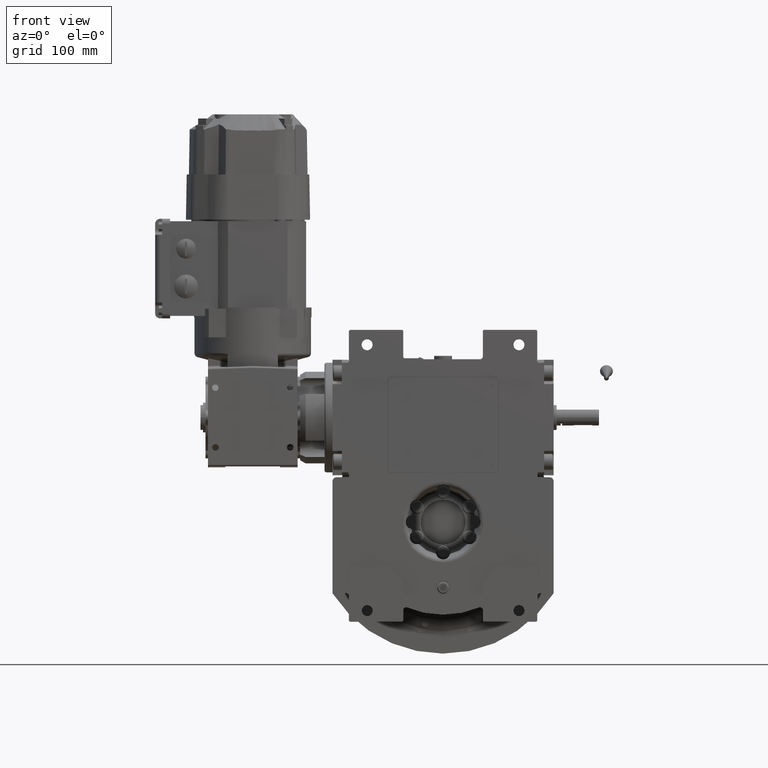
[diagram: clean part render]
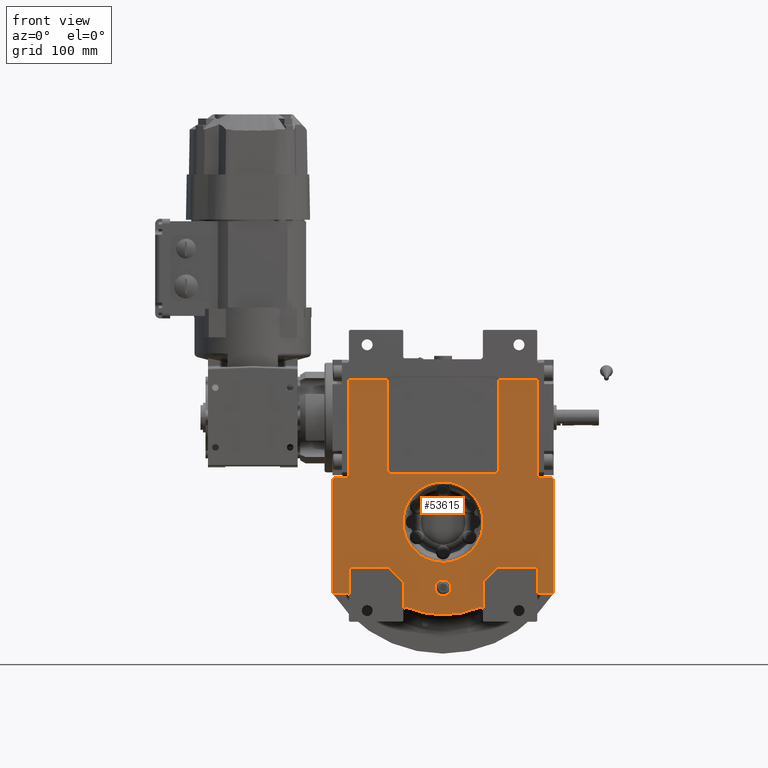
[diagram: same view with one face highlighted and labeled with its STEP entity id]
A machine part, front view. The second image highlights one B-rep face of the part: STEP entity #53615.
In plain terms, the highlighted planar face has unit normal (0, 1, 0).
Its self-contained STEP definition (entity closure, byte-faithful):
#188 = CARTESIAN_POINT ( 'NONE',  ( 94.50000000000000000, -53.50000000000000000, -74.43528539874399996 ) ) ;
#190 = ORIENTED_EDGE ( 'NONE', *, *, #62920, .F. ) ;
#290 = CARTESIAN_POINT ( 'NONE',  ( 40.00000000000000000, -53.50000000000000000, -60.00000000000000000 ) ) ;
#435 = ORIENTED_EDGE ( 'NONE', *, *, #64984, .T. ) ;
#565 = AXIS2_PLACEMENT_3D ( 'NONE', #31292, #53047, #22724 ) ;
#845 = CARTESIAN_POINT ( 'NONE',  ( 40.00000000000000000, -53.50000000000000000, -60.00000000000000000 ) ) ;
#1156 = EDGE_CURVE ( 'NONE', #30560, #99830, #25427, .T. ) ;
#1990 = CARTESIAN_POINT ( 'NONE',  ( 94.50000000000000000, -53.50000000000000000, -45.00000000000000000 ) ) ;
#2035 = LINE ( 'NONE', #7585, #57930 ) ;
#2894 = CARTESIAN_POINT ( 'NONE',  ( 55.87298334620739837, -53.50000000000000000, 143.0000000000000000 ) ) ;
#3516 = VERTEX_POINT ( 'NONE', #23594 ) ;
#3698 = CARTESIAN_POINT ( 'NONE',  ( 80.61913312125007280, -53.49999999999999289, -40.30955543265933727 ) ) ;
#3939 = LINE ( 'NONE', #34753, #90412 ) ;
#4000 = DIRECTION ( 'NONE',  ( 0.000000000000000000, 1.000000000000000000, 0.000000000000000000 ) ) ;
#4211 = EDGE_CURVE ( 'NONE', #86020, #65869, #81507, .T. ) ;
#4237 = ORIENTED_EDGE ( 'NONE', *, *, #42951, .T. ) ;
#5141 = DIRECTION ( 'NONE',  ( 1.000000000000000000, 0.000000000000000000, 0.000000000000000000 ) ) ;
#5598 = VECTOR ( 'NONE', #36988, 1000.000000000000000 ) ;
#5831 = CARTESIAN_POINT ( 'NONE',  ( -97.50000000000000000, -53.50000000000000000, -74.43528539874409944 ) ) ;
#5908 = EDGE_CURVE ( 'NONE', #31588, #78031, #58016, .T. ) ;
#5952 = CIRCLE ( 'NONE', #52681, 3.999999999999996447 ) ;
#6453 = CARTESIAN_POINT ( 'NONE',  ( -51.99999999999900524, -53.50000000000000000, 142.0000000000000000 ) ) ;
#6679 = ORIENTED_EDGE ( 'NONE', *, *, #57818, .T. ) ;
#6720 =( BOUNDED_CURVE ( )  B_SPLINE_CURVE ( 3, ( #57737, #88032, #3698, #56752 ),
 .UNSPECIFIED., .F., .F. ) 
 B_SPLINE_CURVE_WITH_KNOTS ( ( 4, 4 ),
 ( 4.574175343352308687, 7.715766673011676957 ),
 .UNSPECIFIED. ) 
 CURVE ( )  GEOMETRIC_REPRESENTATION_ITEM ( )  RATIONAL_B_SPLINE_CURVE ( ( 1.000000000000000000, 0.3333337746434750226, 0.3333337746434750226, 1.000000000000000000 ) ) 
 REPRESENTATION_ITEM ( '' )  );
#6794 = CARTESIAN_POINT ( 'NONE',  ( -40.00000000000000000, -53.50000000000000000, -88.58329413608420566 ) ) ;
#6921 = EDGE_CURVE ( 'NONE', #46789, #51474, #58270, .T. ) ;
#6986 = ORIENTED_EDGE ( 'NONE', *, *, #40569, .T. ) ;
#7317 = DIRECTION ( 'NONE',  ( 0.000000000000000000, 1.000000000000000000, 0.000000000000000000 ) ) ;
#7400 = DIRECTION ( 'NONE',  ( 0.000000000000000000, 0.000000000000000000, -1.000000000000000000 ) ) ;
#7585 = CARTESIAN_POINT ( 'NONE',  ( 111.0000000000000000, -53.50000000000000000, -71.43528539874399996 ) ) ;
#8211 = LINE ( 'NONE', #59785, #90338 ) ;
#8370 = DIRECTION ( 'NONE',  ( 0.000000000000000000, 0.000000000000000000, -1.000000000000000000 ) ) ;
#9608 = DIRECTION ( 'NONE',  ( 6.319570704518680589E-16, 0.000000000000000000, 1.000000000000000000 ) ) ;
#9794 = CARTESIAN_POINT ( 'NONE',  ( -94.50000000000000000, -53.50000000000000000, 143.0000000000000000 ) ) ;
#9984 = ORIENTED_EDGE ( 'NONE', *, *, #31333, .T. ) ;
#10295 = EDGE_CURVE ( 'NONE', #38622, #30560, #43104, .T. ) ;
#10619 = VERTEX_POINT ( 'NONE', #17804 ) ;
#10976 = CARTESIAN_POINT ( 'NONE',  ( 94.50000000000000000, -53.50000000000000000, 143.0000000000000000 ) ) ;
#11875 = EDGE_CURVE ( 'NONE', #85499, #99442, #29811, .T. ) ;
#12745 = ORIENTED_EDGE ( 'NONE', *, *, #49988, .F. ) ;
#12762 = LINE ( 'NONE', #43552, #5598 ) ;
#12978 = EDGE_CURVE ( 'NONE', #49361, #69653, #80165, .T. ) ;
#13552 = DIRECTION ( 'NONE',  ( 1.000000000000000000, 0.000000000000000000, 0.000000000000000000 ) ) ;
#13621 = LINE ( 'NONE', #97481, #36276 ) ;
#13722 = VERTEX_POINT ( 'NONE', #71372 ) ;
#14378 = ORIENTED_EDGE ( 'NONE', *, *, #25570, .F. ) ;
#15151 = VERTEX_POINT ( 'NONE', #95118 ) ;
#15789 = CARTESIAN_POINT ( 'NONE',  ( 51.99999999999940314, -53.50000000000000000, 142.0000000000000000 ) ) ;
#16103 = ORIENTED_EDGE ( 'NONE', *, *, #42607, .T. ) ;
#16123 = VECTOR ( 'NONE', #39093, 1000.000000000000000 ) ;
#16202 = DIRECTION ( 'NONE',  ( 1.000000000000000000, 0.000000000000000000, 5.204170427930416550E-15 ) ) ;
#16783 = EDGE_CURVE ( 'NONE', #78031, #97169, #41407, .T. ) ;
#16807 = ORIENTED_EDGE ( 'NONE', *, *, #59659, .T. ) ;
#17484 = AXIS2_PLACEMENT_3D ( 'NONE', #6453, #60018, #29667 ) ;
#17804 = CARTESIAN_POINT ( 'NONE',  ( -35.84375000000000000, -53.50000000000000000, -85.81506619433150718 ) ) ;
#17905 = VECTOR ( 'NONE', #86564, 1000.000000000000000 ) ;
#18788 = CARTESIAN_POINT ( 'NONE',  ( 52.00000000000000000, -53.50000000000000000, 53.00000000000000000 ) ) ;
#20296 = FACE_OUTER_BOUND ( 'NONE', #63791, .T. ) ;
#20335 = VERTEX_POINT ( 'NONE', #97266 ) ;
#20920 = AXIS2_PLACEMENT_3D ( 'NONE', #18788, #49587, #65265 ) ;
#21283 = CARTESIAN_POINT ( 'NONE',  ( 94.50000000000000000, -53.50000000000000000, -45.00000000000000000 ) ) ;
#21386 = DIRECTION ( 'NONE',  ( 1.000000000000000000, 0.000000000000000000, 0.000000000000000000 ) ) ;
#21516 = CARTESIAN_POINT ( 'NONE',  ( 107.0000000000000000, -53.50000000000000000, 45.00000000000000000 ) ) ;
#22266 = ORIENTED_EDGE ( 'NONE', *, *, #66604, .F. ) ;
#22475 = DIRECTION ( 'NONE',  ( -1.000000000000000000, 0.000000000000000000, 0.000000000000000000 ) ) ;
#22724 = DIRECTION ( 'NONE',  ( -0.3854166666666676289, 0.000000000000000000, 0.9227426472508761801 ) ) ;
#22973 = CARTESIAN_POINT ( 'NONE',  ( -40.00000000000000000, -53.50000000000000000, -88.58329413608420566 ) ) ;
#23594 = CARTESIAN_POINT ( 'NONE',  ( 111.0000000000000000, -53.50000000000000000, 41.00000000000000000 ) ) ;
#23719 = VECTOR ( 'NONE', #58757, 1000.000000000000000 ) ;
#23745 = DIRECTION ( 'NONE',  ( 0.000000000000000000, -1.000000000000000000, 0.000000000000000000 ) ) ;
#23755 = EDGE_CURVE ( 'NONE', #3516, #51237, #49700, .T. ) ;
#23885 = VERTEX_POINT ( 'NONE', #63649 ) ;
#24380 = CARTESIAN_POINT ( 'NONE',  ( 94.50000000000000000, -53.50000000000000000, -74.43528539874399996 ) ) ;
#25427 = LINE ( 'NONE', #9794, #71327 ) ;
#25500 = EDGE_CURVE ( 'NONE', #10619, #65333, #77398, .T. ) ;
#25570 = EDGE_CURVE ( 'NONE', #61518, #85499, #91102, .T. ) ;
#25696 = CARTESIAN_POINT ( 'NONE',  ( -107.0000000000000000, -53.50000000000000000, 41.00000000000000000 ) ) ;
#25828 = EDGE_CURVE ( 'NONE', #55983, #81654, #6720, .T. ) ;
#27184 = CIRCLE ( 'NONE', #32041, 3.000000000000002665 ) ;
#27217 = VECTOR ( 'NONE', #8370, 1000.000000000000000 ) ;
#27303 = ORIENTED_EDGE ( 'NONE', *, *, #25500, .T. ) ;
#27857 = FACE_BOUND ( 'NONE', #94254, .T. ) ;
#28045 = DIRECTION ( 'NONE',  ( 1.000000000000000000, 0.000000000000000000, 0.000000000000000000 ) ) ;
#28430 = DIRECTION ( 'NONE',  ( 0.000000000000000000, 0.000000000000000000, 1.000000000000000000 ) ) ;
#28482 = ORIENTED_EDGE ( 'NONE', *, *, #74282, .F. ) ;
#28729 = EDGE_CURVE ( 'NONE', #99830, #31588, #91629, .T. ) ;
#29031 = EDGE_CURVE ( 'NONE', #30327, #42415, #27184, .T. ) ;
#29616 = CIRCLE ( 'NONE', #95758, 8.000000000000000000 ) ;
#29667 = DIRECTION ( 'NONE',  ( -0.9682458365518610277, 0.000000000000000000, 0.2499999999999737432 ) ) ;
#29811 = LINE ( 'NONE', #21283, #92953 ) ;
#30121 = EDGE_LOOP ( 'NONE', ( #75412, #36336 ) ) ;
#30327 = VERTEX_POINT ( 'NONE', #84149 ) ;
#30560 = VERTEX_POINT ( 'NONE', #73449 ) ;
#31017 = LINE ( 'NONE', #6794, #60633 ) ;
#31292 = CARTESIAN_POINT ( 'NONE',  ( 37.00000000000000000, -53.50000000000000000, -88.58329413608420566 ) ) ;
#31303 = ORIENTED_EDGE ( 'NONE', *, *, #6921, .F. ) ;
#31333 = EDGE_CURVE ( 'NONE', #95606, #3516, #2035, .T. ) ;
#31516 = DIRECTION ( 'NONE',  ( 0.000000000000000000, 0.000000000000000000, 1.000000000000000000 ) ) ;
#31588 = VERTEX_POINT ( 'NONE', #58884 ) ;
#31602 = ORIENTED_EDGE ( 'NONE', *, *, #23755, .T. ) ;
#31844 = AXIS2_PLACEMENT_3D ( 'NONE', #90230, #60406, #60885 ) ;
#32041 = AXIS2_PLACEMENT_3D ( 'NONE', #5831, #7317, #46193 ) ;
#32433 = ORIENTED_EDGE ( 'NONE', *, *, #87411, .T. ) ;
#33395 = CARTESIAN_POINT ( 'NONE',  ( -56.00000000000000000, -53.50000000000000000, 53.00000000000000000 ) ) ;
#34415 = CIRCLE ( 'NONE', #565, 3.000000000000003997 ) ;
#34753 = CARTESIAN_POINT ( 'NONE',  ( -111.0000000000000000, -53.50000000000000000, 41.00000000000000000 ) ) ;
#35453 = CARTESIAN_POINT ( 'NONE',  ( -8.000000000000000000, -53.50000000000000000, -66.00000000000000000 ) ) ;
#35557 = CARTESIAN_POINT ( 'NONE',  ( 56.00000000000000000, -53.50000000000000000, 53.00000000000000000 ) ) ;
#35771 = CARTESIAN_POINT ( 'NONE',  ( -56.00000000000000000, -53.50000000000000000, 142.0000000000000000 ) ) ;
#36276 = VECTOR ( 'NONE', #74749, 1000.000000000000114 ) ;
#36303 = VECTOR ( 'NONE', #44089, 1000.000000000000000 ) ;
#36336 = ORIENTED_EDGE ( 'NONE', *, *, #59917, .F. ) ;
#36988 = DIRECTION ( 'NONE',  ( 0.000000000000000000, 0.000000000000000000, -1.000000000000000000 ) ) ;
#37031 = CARTESIAN_POINT ( 'NONE',  ( 55.87298334620739837, -53.50000000000000000, 143.0000000000000000 ) ) ;
#37627 = ORIENTED_EDGE ( 'NONE', *, *, #28729, .F. ) ;
#38130 = CARTESIAN_POINT ( 'NONE',  ( 97.50000000000000000, -53.50000000000000000, -74.43528539874399996 ) ) ;
#38179 = CIRCLE ( 'NONE', #52913, 4.000000000000572875 ) ;
#38284 = VERTEX_POINT ( 'NONE', #845 ) ;
#38622 = VERTEX_POINT ( 'NONE', #88708 ) ;
#39093 = DIRECTION ( 'NONE',  ( 0.000000000000000000, 0.000000000000000000, 1.000000000000000000 ) ) ;
#39605 = DIRECTION ( 'NONE',  ( 1.000000000000000000, 0.000000000000000000, 0.000000000000000000 ) ) ;
#39621 = EDGE_CURVE ( 'NONE', #15151, #46789, #45812, .T. ) ;
#40199 = CARTESIAN_POINT ( 'NONE',  ( -1.264761546777279996E-10, -53.50000000000000000, 40.30959420574835406 ) ) ;
#40569 = EDGE_CURVE ( 'NONE', #81654, #55983, #52441, .T. ) ;
#41227 = CARTESIAN_POINT ( 'NONE',  ( -55.00000000000000000, -53.50000000000000000, -45.00000000000000000 ) ) ;
#41407 = CIRCLE ( 'NONE', #97863, 3.999999999999996447 ) ;
#42099 = AXIS2_PLACEMENT_3D ( 'NONE', #81899, #74334, #5141 ) ;
#42415 = VERTEX_POINT ( 'NONE', #46005 ) ;
#42569 = CARTESIAN_POINT ( 'NONE',  ( -111.0000000000000000, -53.50000000000000000, -71.43528539874409944 ) ) ;
#42607 = EDGE_CURVE ( 'NONE', #43849, #20335, #3939, .T. ) ;
#42711 = CARTESIAN_POINT ( 'NONE',  ( 97.50000000000000000, -53.50000000000000000, -71.43528539874399996 ) ) ;
#42951 = EDGE_CURVE ( 'NONE', #20335, #30327, #94622, .T. ) ;
#43104 = LINE ( 'NONE', #51187, #36303 ) ;
#43305 = DIRECTION ( 'NONE',  ( 0.000000000000000000, 0.000000000000000000, -1.000000000000000000 ) ) ;
#43541 = VECTOR ( 'NONE', #46313, 1000.000000000000114 ) ;
#43552 = CARTESIAN_POINT ( 'NONE',  ( -94.50000000000000000, -53.50000000000000000, -45.00000000000000000 ) ) ;
#43665 = DIRECTION ( 'NONE',  ( -0.3854166666666672403, 0.000000000000000000, -0.9227426472508764022 ) ) ;
#43849 = VERTEX_POINT ( 'NONE', #86472 ) ;
#44089 = DIRECTION ( 'NONE',  ( 0.000000000000000000, 0.000000000000000000, 1.000000000000000000 ) ) ;
#44154 = ORIENTED_EDGE ( 'NONE', *, *, #29031, .T. ) ;
#44322 = LINE ( 'NONE', #82750, #95542 ) ;
#44521 = EDGE_CURVE ( 'NONE', #13722, #38622, #44322, .T. ) ;
#44633 = CARTESIAN_POINT ( 'NONE',  ( 1.421085471520200056E-14, -53.50000000000000000, -4.263256414560599853E-14 ) ) ;
#44711 = DIRECTION ( 'NONE',  ( -1.000000000000000000, 0.000000000000000000, 4.625929269271481378E-15 ) ) ;
#44938 = AXIS2_PLACEMENT_3D ( 'NONE', #57062, #4000, #44711 ) ;
#44978 = DIRECTION ( 'NONE',  ( -1.000000000000000000, 0.000000000000000000, 0.000000000000000000 ) ) ;
#45812 = LINE ( 'NONE', #46843, #43541 ) ;
#46005 = CARTESIAN_POINT ( 'NONE',  ( -94.50000000000000000, -53.50000000000000000, -74.43528539874409944 ) ) ;
#46193 = DIRECTION ( 'NONE',  ( 0.000000000000000000, 0.000000000000000000, 1.000000000000000000 ) ) ;
#46313 = DIRECTION ( 'NONE',  ( -0.7071067811865474617, 0.000000000000000000, 0.7071067811865474617 ) ) ;
#46737 = VERTEX_POINT ( 'NONE', #80422 ) ;
#46789 = VERTEX_POINT ( 'NONE', #41227 ) ;
#46843 = CARTESIAN_POINT ( 'NONE',  ( -40.00000000000000000, -53.50000000000000000, -60.00000000000000000 ) ) ;
#47222 = CARTESIAN_POINT ( 'NONE',  ( -8.881784197001250351E-16, -53.50000000000000000, -66.00000000000000000 ) ) ;
#47277 = VECTOR ( 'NONE', #28045, 1000.000000000000000 ) ;
#47935 = DIRECTION ( 'NONE',  ( 0.000000000000000000, -1.000000000000000000, 0.000000000000000000 ) ) ;
#47993 = CIRCLE ( 'NONE', #31844, 8.000000000000000000 ) ;
#48207 = DIRECTION ( 'NONE',  ( 0.000000000000000000, -1.000000000000000000, 0.000000000000000000 ) ) ;
#48419 = DIRECTION ( 'NONE',  ( 0.000000000000000000, -1.000000000000000000, 0.000000000000000000 ) ) ;
#48497 = ORIENTED_EDGE ( 'NONE', *, *, #39621, .F. ) ;
#48749 = CARTESIAN_POINT ( 'NONE',  ( -80.61913312099703433, -53.49999999999999289, -40.30952624498007708 ) ) ;
#48811 = CARTESIAN_POINT ( 'NONE',  ( 35.84375000000000000, -53.50000000000000000, -85.81506619433150718 ) ) ;
#49361 = VERTEX_POINT ( 'NONE', #59535 ) ;
#49587 = DIRECTION ( 'NONE',  ( 0.000000000000000000, -1.000000000000000000, 0.000000000000000000 ) ) ;
#49700 = CIRCLE ( 'NONE', #94925, 4.000000000000003553 ) ;
#49988 = EDGE_CURVE ( 'NONE', #46737, #86020, #53143, .T. ) ;
#50157 = ORIENTED_EDGE ( 'NONE', *, *, #10295, .F. ) ;
#50544 = CARTESIAN_POINT ( 'NONE',  ( -52.00000000000000000, -53.50000000000000000, 49.00000000000000000 ) ) ;
#51089 = PLANE ( 'NONE',  #42099 ) ;
#51187 = CARTESIAN_POINT ( 'NONE',  ( -94.50000000000000000, -53.50000000000000000, 45.00000000000000000 ) ) ;
#51237 = VERTEX_POINT ( 'NONE', #21516 ) ;
#51474 = VERTEX_POINT ( 'NONE', #53818 ) ;
#52441 =( BOUNDED_CURVE ( )  B_SPLINE_CURVE ( 3, ( #87652, #48749, #94215, #40199 ),
 .UNSPECIFIED., .F., .F. ) 
 B_SPLINE_CURVE_WITH_KNOTS ( ( 4, 4 ),
 ( 1.432582689913126872, 4.574174019572492256 ),
 .UNSPECIFIED. ) 
 CURVE ( )  GEOMETRIC_REPRESENTATION_ITEM ( )  RATIONAL_B_SPLINE_CURVE ( ( 1.000000000000000000, 0.3333337746434759108, 0.3333337746434759108, 1.000000000000000000 ) ) 
 REPRESENTATION_ITEM ( '' )  );
#52532 = VERTEX_POINT ( 'NONE', #2894 ) ;
#52681 = AXIS2_PLACEMENT_3D ( 'NONE', #25696, #47935, #71194 ) ;
#52913 = AXIS2_PLACEMENT_3D ( 'NONE', #15789, #77424, #68816 ) ;
#53047 = DIRECTION ( 'NONE',  ( 0.000000000000000000, 1.000000000000000000, 0.000000000000000000 ) ) ;
#53143 = CIRCLE ( 'NONE', #20920, 3.999999999999996447 ) ;
#53392 = CARTESIAN_POINT ( 'NONE',  ( 8.000000000000000000, -53.50000000000000000, -66.00000000000000000 ) ) ;
#53614 = VERTEX_POINT ( 'NONE', #35453 ) ;
#53615 = ADVANCED_FACE ( 'NONE', ( #27857, #89491, #20296 ), #51089, .F. ) ;
#53818 = CARTESIAN_POINT ( 'NONE',  ( -94.50000000000000000, -53.50000000000000000, -45.00000000000000000 ) ) ;
#54109 = ORIENTED_EDGE ( 'NONE', *, *, #12978, .F. ) ;
#54114 = ORIENTED_EDGE ( 'NONE', *, *, #96428, .F. ) ;
#54657 = ORIENTED_EDGE ( 'NONE', *, *, #4211, .F. ) ;
#55909 = ORIENTED_EDGE ( 'NONE', *, *, #25828, .T. ) ;
#55983 = VERTEX_POINT ( 'NONE', #64079 ) ;
#56752 = CARTESIAN_POINT ( 'NONE',  ( 1.264666971694413862E-10, -53.50000000000000000, -40.30959420574829721 ) ) ;
#57062 = CARTESIAN_POINT ( 'NONE',  ( -37.00000000000000000, -53.50000000000000000, -88.58329413608420566 ) ) ;
#57210 = CARTESIAN_POINT ( 'NONE',  ( 111.0000000000000000, -53.50000000000000000, -71.43528539874399996 ) ) ;
#57352 = CARTESIAN_POINT ( 'NONE',  ( 55.00000000000000000, -53.50000000000000000, -45.00000000000000000 ) ) ;
#57718 = CARTESIAN_POINT ( 'NONE',  ( 94.50000000000000000, -53.50000000000000000, 45.00000000000000000 ) ) ;
#57737 = CARTESIAN_POINT ( 'NONE',  ( -1.264761546777279996E-10, -53.50000000000000000, 40.30959420574835406 ) ) ;
#57818 = EDGE_CURVE ( 'NONE', #76080, #95606, #60363, .T. ) ;
#57930 = VECTOR ( 'NONE', #9608, 1000.000000000000000 ) ;
#58016 = LINE ( 'NONE', #35771, #96347 ) ;
#58130 = EDGE_CURVE ( 'NONE', #52532, #49361, #58772, .T. ) ;
#58270 = LINE ( 'NONE', #89078, #23719 ) ;
#58705 = AXIS2_PLACEMENT_3D ( 'NONE', #38130, #90699, #22475 ) ;
#58757 = DIRECTION ( 'NONE',  ( -1.000000000000000000, 0.000000000000000000, 0.000000000000000000 ) ) ;
#58772 = LINE ( 'NONE', #37031, #82812 ) ;
#58884 = CARTESIAN_POINT ( 'NONE',  ( -56.00000000000000000, -53.50000000000000000, 142.0000000000000000 ) ) ;
#59144 = EDGE_CURVE ( 'NONE', #65333, #23885, #34415, .T. ) ;
#59535 = CARTESIAN_POINT ( 'NONE',  ( 94.50000000000000000, -53.50000000000000000, 143.0000000000000000 ) ) ;
#59659 = EDGE_CURVE ( 'NONE', #61518, #76080, #98785, .T. ) ;
#59769 = DIRECTION ( 'NONE',  ( 1.000000000000000000, 0.000000000000000000, 0.000000000000000000 ) ) ;
#59785 = CARTESIAN_POINT ( 'NONE',  ( -52.00000000000000000, -53.50000000000000000, 49.00000000000000000 ) ) ;
#59917 = EDGE_CURVE ( 'NONE', #53614, #74774, #29616, .T. ) ;
#60018 = DIRECTION ( 'NONE',  ( 0.000000000000000000, -1.000000000000000000, 0.000000000000000000 ) ) ;
#60363 = LINE ( 'NONE', #91149, #47277 ) ;
#60406 = DIRECTION ( 'NONE',  ( 0.000000000000000000, -1.000000000000000000, 0.000000000000000000 ) ) ;
#60633 = VECTOR ( 'NONE', #31516, 1000.000000000000000 ) ;
#60885 = DIRECTION ( 'NONE',  ( 1.000000000000000000, 0.000000000000000000, 0.000000000000000000 ) ) ;
#61518 = VERTEX_POINT ( 'NONE', #24380 ) ;
#62717 = CIRCLE ( 'NONE', #44938, 3.000000000000002665 ) ;
#62920 = EDGE_CURVE ( 'NONE', #51474, #42415, #12762, .T. ) ;
#63649 = CARTESIAN_POINT ( 'NONE',  ( 40.00000000000000000, -53.50000000000000000, -88.58329413608420566 ) ) ;
#63791 = EDGE_LOOP ( 'NONE', ( #94458, #98846, #81099, #37627, #92733, #50157, #93139, #435, #16103, #4237, #44154, #190, #31303, #48497, #54114, #32433, #27303, #84696, #97231, #28482, #91961, #14378, #16807, #6679, #9984, #31602, #85037, #54109, #68024, #22266, #54657, #12745 ) ) ;
#64079 = CARTESIAN_POINT ( 'NONE',  ( -1.264761546777279996E-10, -53.50000000000000000, 40.30959420574835406 ) ) ;
#64984 = EDGE_CURVE ( 'NONE', #13722, #43849, #5952, .T. ) ;
#65265 = DIRECTION ( 'NONE',  ( 0.000000000000000000, 0.000000000000000000, -1.000000000000000000 ) ) ;
#65333 = VERTEX_POINT ( 'NONE', #48811 ) ;
#65869 = VERTEX_POINT ( 'NONE', #97898 ) ;
#66604 = EDGE_CURVE ( 'NONE', #65869, #52532, #38179, .T. ) ;
#67270 = EDGE_CURVE ( 'NONE', #74774, #53614, #47993, .T. ) ;
#68024 = ORIENTED_EDGE ( 'NONE', *, *, #58130, .F. ) ;
#68265 = CARTESIAN_POINT ( 'NONE',  ( -55.87298334620739837, -53.50000000000000000, 143.0000000000000000 ) ) ;
#68816 = DIRECTION ( 'NONE',  ( 1.000000000000000000, 0.000000000000000000, 1.387778780781246883E-14 ) ) ;
#69213 = EDGE_CURVE ( 'NONE', #38284, #23885, #86161, .T. ) ;
#69653 = VERTEX_POINT ( 'NONE', #57718 ) ;
#70436 = LINE ( 'NONE', #94161, #93071 ) ;
#71194 = DIRECTION ( 'NONE',  ( -3.469446951953617344E-15, 0.000000000000000000, 1.000000000000000000 ) ) ;
#71327 = VECTOR ( 'NONE', #39605, 1000.000000000000000 ) ;
#71372 = CARTESIAN_POINT ( 'NONE',  ( -107.0000000000000000, -53.50000000000000000, 45.00000000000000000 ) ) ;
#73449 = CARTESIAN_POINT ( 'NONE',  ( -94.50000000000000000, -53.50000000000000000, 143.0000000000000000 ) ) ;
#73717 = VECTOR ( 'NONE', #89731, 1000.000000000000000 ) ;
#74282 = EDGE_CURVE ( 'NONE', #99442, #38284, #13621, .T. ) ;
#74334 = DIRECTION ( 'NONE',  ( -0.000000000000000000, 1.000000000000000000, 0.000000000000000000 ) ) ;
#74749 = DIRECTION ( 'NONE',  ( -0.7071067811865474617, 0.000000000000000000, -0.7071067811865474617 ) ) ;
#74774 = VERTEX_POINT ( 'NONE', #53392 ) ;
#75412 = ORIENTED_EDGE ( 'NONE', *, *, #67270, .F. ) ;
#76080 = VERTEX_POINT ( 'NONE', #42711 ) ;
#76385 = EDGE_CURVE ( 'NONE', #69653, #51237, #70436, .T. ) ;
#77020 = DIRECTION ( 'NONE',  ( -1.000000000000000000, 0.000000000000000000, 0.000000000000000000 ) ) ;
#77398 = CIRCLE ( 'NONE', #93476, 92.99999999999995737 ) ;
#77424 = DIRECTION ( 'NONE',  ( 0.000000000000000000, -1.000000000000000000, 0.000000000000000000 ) ) ;
#78031 = VERTEX_POINT ( 'NONE', #33395 ) ;
#79991 = DIRECTION ( 'NONE',  ( 1.000000000000000000, 0.000000000000000000, 0.000000000000000000 ) ) ;
#80165 = LINE ( 'NONE', #10976, #73717 ) ;
#80233 = DIRECTION ( 'NONE',  ( -1.000000000000000000, 0.000000000000000000, 1.734723475976808672E-15 ) ) ;
#80422 = CARTESIAN_POINT ( 'NONE',  ( 52.00000000000000000, -53.50000000000000000, 49.00000000000000000 ) ) ;
#81099 = ORIENTED_EDGE ( 'NONE', *, *, #5908, .F. ) ;
#81460 = EDGE_CURVE ( 'NONE', #97169, #46737, #8211, .T. ) ;
#81507 = LINE ( 'NONE', #35557, #88162 ) ;
#81654 = VERTEX_POINT ( 'NONE', #96050 ) ;
#81899 = CARTESIAN_POINT ( 'NONE',  ( 0.000000000000000000, -53.50000000000000000, 0.000000000000000000 ) ) ;
#82750 = CARTESIAN_POINT ( 'NONE',  ( -107.0000000000000000, -53.50000000000000000, 45.00000000000000000 ) ) ;
#82812 = VECTOR ( 'NONE', #59769, 1000.000000000000000 ) ;
#84149 = CARTESIAN_POINT ( 'NONE',  ( -97.50000000000000000, -53.50000000000000000, -71.43528539874409944 ) ) ;
#84696 = ORIENTED_EDGE ( 'NONE', *, *, #59144, .T. ) ;
#85037 = ORIENTED_EDGE ( 'NONE', *, *, #76385, .F. ) ;
#85499 = VERTEX_POINT ( 'NONE', #1990 ) ;
#86020 = VERTEX_POINT ( 'NONE', #86233 ) ;
#86161 = LINE ( 'NONE', #290, #27217 ) ;
#86233 = CARTESIAN_POINT ( 'NONE',  ( 56.00000000000000000, -53.50000000000000000, 53.00000000000000000 ) ) ;
#86465 = VERTEX_POINT ( 'NONE', #22973 ) ;
#86472 = CARTESIAN_POINT ( 'NONE',  ( -111.0000000000000000, -53.50000000000000000, 41.00000000000000000 ) ) ;
#86564 = DIRECTION ( 'NONE',  ( 1.000000000000000000, 0.000000000000000000, 0.000000000000000000 ) ) ;
#86827 = CARTESIAN_POINT ( 'NONE',  ( -52.00000000000000000, -53.50000000000000000, 53.00000000000000000 ) ) ;
#87411 = EDGE_CURVE ( 'NONE', #86465, #10619, #62717, .T. ) ;
#87652 = CARTESIAN_POINT ( 'NONE',  ( 1.264666971694413862E-10, -53.50000000000000000, -40.30959420574829721 ) ) ;
#88032 = CARTESIAN_POINT ( 'NONE',  ( 80.61913312099713380, -53.49999999999999289, 40.30952624498025472 ) ) ;
#88162 = VECTOR ( 'NONE', #28430, 1000.000000000000000 ) ;
#88708 = CARTESIAN_POINT ( 'NONE',  ( -94.50000000000000000, -53.50000000000000000, 45.00000000000000000 ) ) ;
#89078 = CARTESIAN_POINT ( 'NONE',  ( -55.00000000000000000, -53.50000000000000000, -45.00000000000000000 ) ) ;
#89491 = FACE_BOUND ( 'NONE', #30121, .T. ) ;
#89731 = DIRECTION ( 'NONE',  ( 0.000000000000000000, 0.000000000000000000, -1.000000000000000000 ) ) ;
#90230 = CARTESIAN_POINT ( 'NONE',  ( 8.881784197001250351E-16, -53.50000000000000000, -66.00000000000000000 ) ) ;
#90338 = VECTOR ( 'NONE', #21386, 1000.000000000000000 ) ;
#90412 = VECTOR ( 'NONE', #43305, 1000.000000000000000 ) ;
#90642 = DIRECTION ( 'NONE',  ( 0.000000000000000000, -1.000000000000000000, 0.000000000000000000 ) ) ;
#90699 = DIRECTION ( 'NONE',  ( 0.000000000000000000, 1.000000000000000000, 0.000000000000000000 ) ) ;
#91102 = LINE ( 'NONE', #188, #16123 ) ;
#91149 = CARTESIAN_POINT ( 'NONE',  ( 97.50000000000000000, -53.50000000000000000, -71.43528539874399996 ) ) ;
#91629 = CIRCLE ( 'NONE', #17484, 4.000000000000978773 ) ;
#91961 = ORIENTED_EDGE ( 'NONE', *, *, #11875, .F. ) ;
#92733 = ORIENTED_EDGE ( 'NONE', *, *, #1156, .F. ) ;
#92931 = CARTESIAN_POINT ( 'NONE',  ( 107.0000000000000000, -53.50000000000000000, 41.00000000000000000 ) ) ;
#92953 = VECTOR ( 'NONE', #44978, 1000.000000000000000 ) ;
#93071 = VECTOR ( 'NONE', #79991, 1000.000000000000000 ) ;
#93139 = ORIENTED_EDGE ( 'NONE', *, *, #44521, .F. ) ;
#93476 = AXIS2_PLACEMENT_3D ( 'NONE', #44633, #90642, #43665 ) ;
#94161 = CARTESIAN_POINT ( 'NONE',  ( 94.50000000000000000, -53.50000000000000000, 45.00000000000000000 ) ) ;
#94215 = CARTESIAN_POINT ( 'NONE',  ( -80.61913312124997333, -53.49999999999999289, 40.30955543265923069 ) ) ;
#94254 = EDGE_LOOP ( 'NONE', ( #6986, #55909 ) ) ;
#94458 = ORIENTED_EDGE ( 'NONE', *, *, #81460, .F. ) ;
#94622 = LINE ( 'NONE', #42569, #17905 ) ;
#94925 = AXIS2_PLACEMENT_3D ( 'NONE', #92931, #23745, #16202 ) ;
#95118 = CARTESIAN_POINT ( 'NONE',  ( -40.00000000000000000, -53.50000000000000000, -60.00000000000000000 ) ) ;
#95542 = VECTOR ( 'NONE', #13552, 1000.000000000000000 ) ;
#95606 = VERTEX_POINT ( 'NONE', #57210 ) ;
#95758 = AXIS2_PLACEMENT_3D ( 'NONE', #47222, #48207, #77020 ) ;
#96050 = CARTESIAN_POINT ( 'NONE',  ( 1.264666971694413862E-10, -53.50000000000000000, -40.30959420574829721 ) ) ;
#96347 = VECTOR ( 'NONE', #7400, 1000.000000000000000 ) ;
#96428 = EDGE_CURVE ( 'NONE', #86465, #15151, #31017, .T. ) ;
#97169 = VERTEX_POINT ( 'NONE', #50544 ) ;
#97231 = ORIENTED_EDGE ( 'NONE', *, *, #69213, .F. ) ;
#97266 = CARTESIAN_POINT ( 'NONE',  ( -111.0000000000000000, -53.50000000000000000, -71.43528539874409944 ) ) ;
#97481 = CARTESIAN_POINT ( 'NONE',  ( 55.00000000000000000, -53.50000000000000000, -45.00000000000000000 ) ) ;
#97863 = AXIS2_PLACEMENT_3D ( 'NONE', #86827, #48419, #80233 ) ;
#97898 = CARTESIAN_POINT ( 'NONE',  ( 56.00000000000000000, -53.50000000000000000, 142.0000000000000000 ) ) ;
#98785 = CIRCLE ( 'NONE', #58705, 3.000000000000002665 ) ;
#98846 = ORIENTED_EDGE ( 'NONE', *, *, #16783, .F. ) ;
#99442 = VERTEX_POINT ( 'NONE', #57352 ) ;
#99830 = VERTEX_POINT ( 'NONE', #68265 ) ;